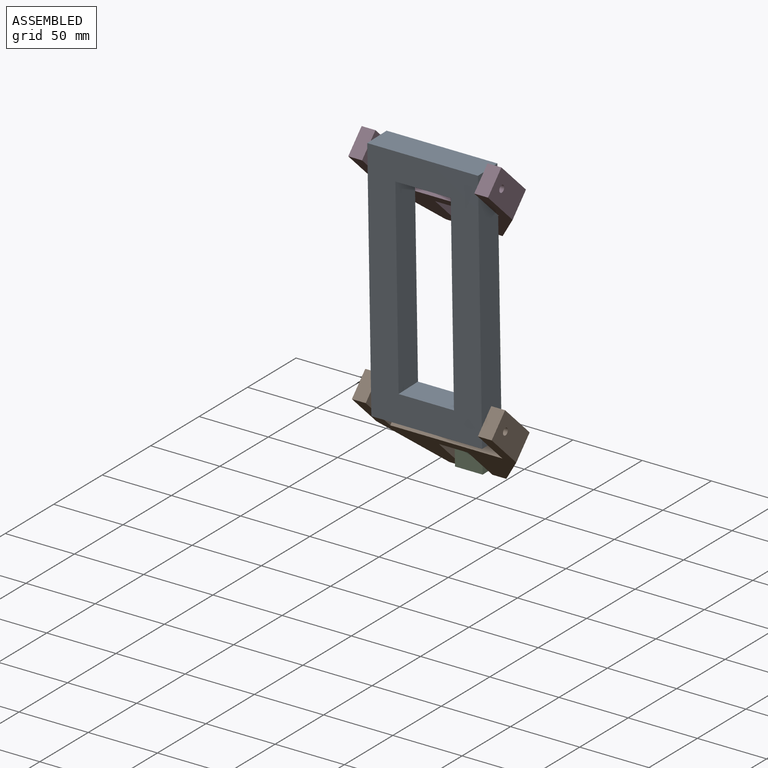
[diagram: assembled view]
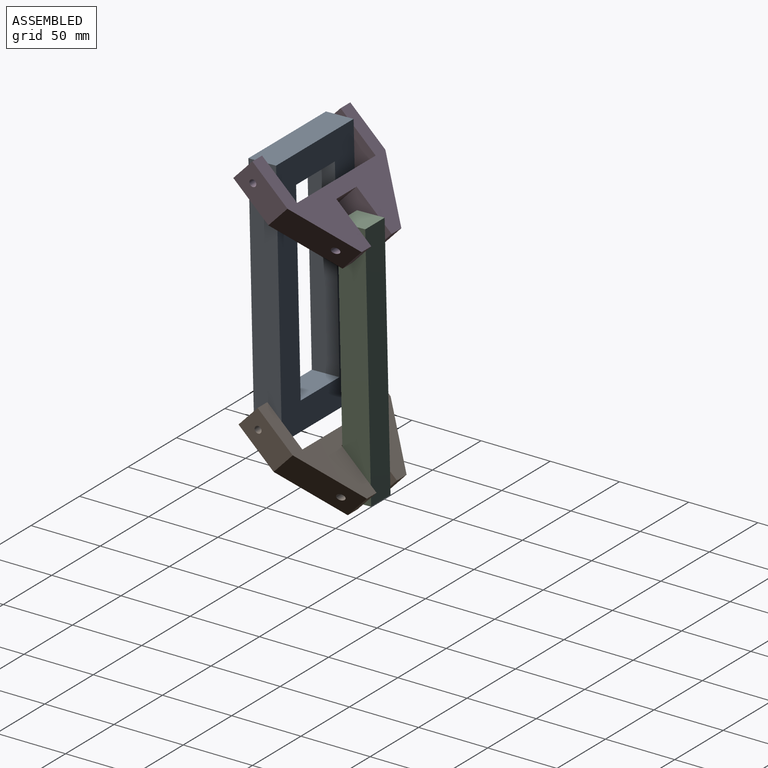
[diagram: assembled view, second angle]
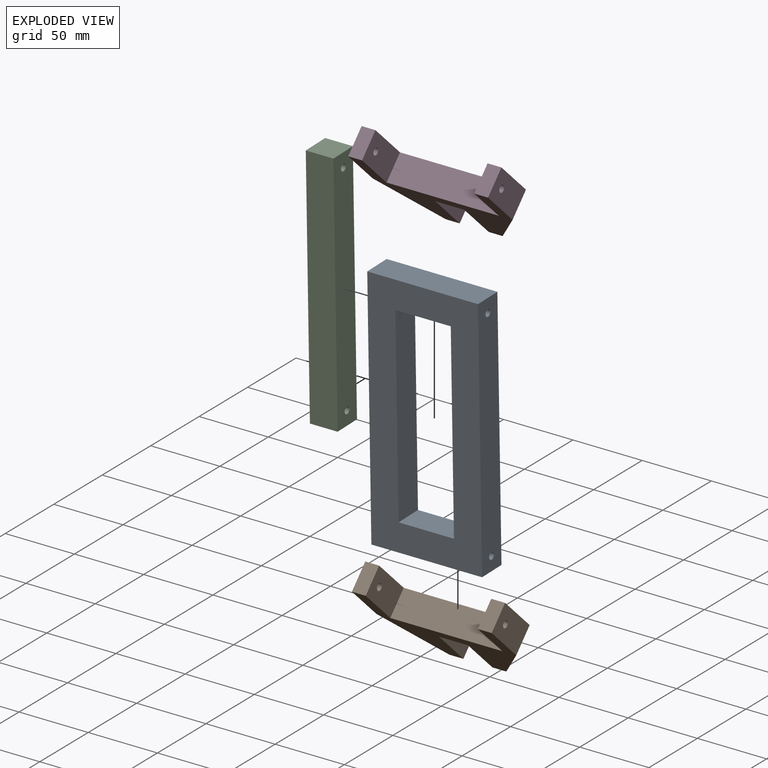
[diagram: exploded view]
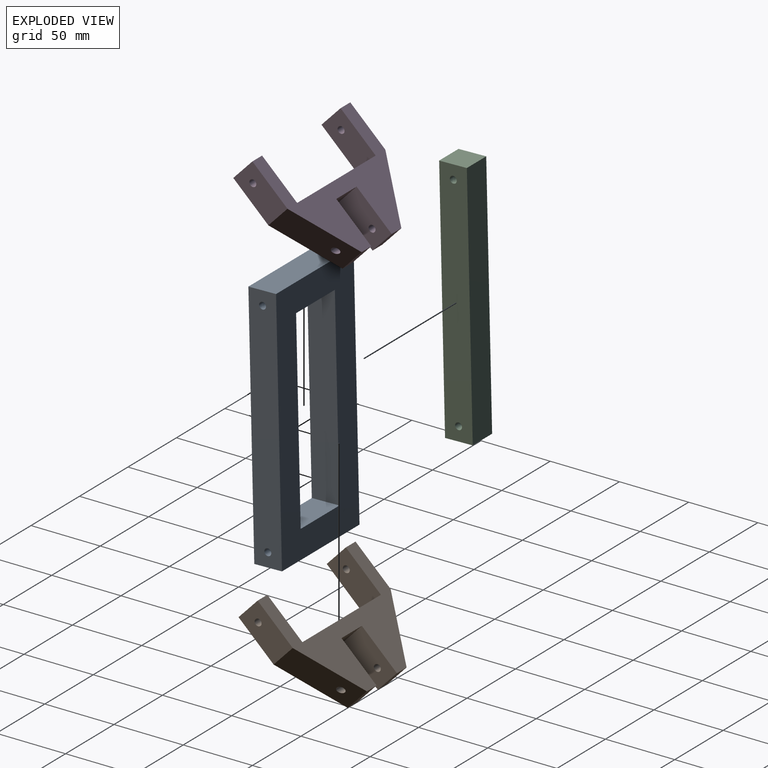
[diagram: exploded view, second angle]
ASSEMBLY  parts=4 mates=4
PART A: 12 faces, bbox 80x20x180 mm
  f0: plane 80x20mm, normal (0,0,1), area 1600mm2, adj f1,f7,f8,f9
  f1: plane 180x20mm, normal (-1,0,0), area 3560.7mm2, adj f0,f2,f8,f9,f10,f11
  f2: plane 80x20mm, normal (0,0,-1), area 1600mm2, adj f1,f7,f8,f9
  f3: plane 140x20mm, normal (1,0,0), area 2800mm2, adj f4,f6,f8,f9
  f4: plane 40x20mm, normal (0,0,-1), area 800mm2, adj f3,f5,f8,f9
  f5: plane 140x20mm, normal (-1,0,0), area 2800mm2, adj f4,f6,f8,f9
  f6: plane 40x20mm, normal (0,0,1), area 800mm2, adj f3,f5,f8,f9
  f7: plane 180x20mm, normal (1,0,0), area 3560.7mm2, adj f0,f2,f8,f9,f10,f11
  f8: plane 180x80mm, normal (0,-1,0), area 8800mm2, adj f0,f1,f2,f3,f4,f5,f6,f7
  f9: plane 180x80mm, normal (0,1,0), area 8800mm2, adj f0,f1,f2,f3,f4,f5,f6,f7
  f10: cylinder r=2.5mm len=80mm, axis (1,0,0), area 1256.6mm2, adj f1,f7
  f11: cylinder r=2.5mm len=80mm, axis (1,0,0), area 1256.6mm2, adj f1,f7
PART B: 20 faces, bbox 101x80x20 mm
  f0: plane 21x20mm, normal (0,1,0), area 420mm2, adj f1,f13,f14,f15
  f1: plane 35x20mm, normal (1,0,0), area 680.4mm2, adj f0,f2,f14,f15,f19
  f2: plane 20x10mm, normal (0,1,0), area 200mm2, adj f1,f3,f14,f15
  f3: plane 45x30mm, normal (-0.83,0.55,0), area 1058.1mm2, adj f2,f4,f14,f15,f19
  f4: plane 35x20mm, normal (-1,0,0), area 680.4mm2, adj f3,f5,f14,f15,f18
  f5: plane 20x10mm, normal (0,-1,0), area 200mm2, adj f4,f6,f14,f15
  f6: plane 35x20mm, normal (1,0,0), area 680.4mm2, adj f5,f7,f14,f15,f18
  f7: plane 81x20mm, normal (0,-1,0), area 1620mm2, adj f6,f8,f14,f15
  f8: plane 35x20mm, normal (-1,0,0), area 680.4mm2, adj f7,f9,f14,f15,f17
  f9: plane 20x10mm, normal (0,-1,0), area 200mm2, adj f8,f10,f14,f15
  f10: plane 35x20mm, normal (1,0,0), area 680.4mm2, adj f9,f11,f14,f15,f17
  f11: plane 45x30mm, normal (0.83,0.55,0), area 1058.1mm2, adj f10,f12,f14,f15,f16
  f12: plane 20x10mm, normal (0,1,0), area 200mm2, adj f11,f13,f14,f15
  f13: plane 35x20mm, normal (-1,0,0), area 680.4mm2, adj f0,f12,f14,f15,f16
  f14: plane 101x80mm, normal (0,0,-1), area 3160mm2, adj f0,f1,f2,f3,f4,f5,f6,f7
  f15: plane 101x80mm, normal (0,0,1), area 3160mm2, adj f0,f1,f2,f3,f4,f5,f6,f7
  f16: cylinder r=2.5mm len=18.33mm, axis (1,0,0), area 261.8mm2, adj f11,f13
  f17: cylinder r=2.5mm len=10mm, axis (1,0,0), area 157.1mm2, adj f8,f10
  f18: cylinder r=2.5mm len=10mm, axis (1,0,0), area 157.1mm2, adj f4,f6
  f19: cylinder r=2.5mm len=18.36mm, axis (1,0,0), area 261.8mm2, adj f1,f3
PART C: 8 faces, bbox 20x20x180 mm
  f0: plane 20x20mm, normal (0,0,1), area 400mm2, adj f1,f3,f4,f5
  f1: plane 180x20mm, normal (0,-1,0), area 3600mm2, adj f0,f2,f4,f5
  f2: plane 20x20mm, normal (0,0,-1), area 400mm2, adj f1,f3,f4,f5
  f3: plane 180x20mm, normal (0,1,0), area 3600mm2, adj f0,f2,f4,f5
  f4: plane 180x20mm, normal (1,0,0), area 3560.7mm2, adj f0,f1,f2,f3,f6,f7
  f5: plane 180x20mm, normal (-1,0,0), area 3560.7mm2, adj f0,f1,f2,f3,f6,f7
  f6: cylinder r=2.5mm len=20mm, axis (1,0,0), area 314.2mm2, adj f4,f5
  f7: cylinder r=2.5mm len=20mm, axis (1,0,0), area 314.2mm2, adj f4,f5
PART D: 20 faces, bbox 101x80x20 mm
  f0: plane 21x20mm, normal (0,1,0), area 420mm2, adj f1,f13,f14,f15
  f1: plane 35x20mm, normal (1,0,0), area 680.4mm2, adj f0,f2,f14,f15,f19
  f2: plane 20x10mm, normal (0,1,0), area 200mm2, adj f1,f3,f14,f15
  f3: plane 45x30mm, normal (-0.83,0.55,0), area 1058.1mm2, adj f2,f4,f14,f15,f19
  f4: plane 35x20mm, normal (-1,0,0), area 680.4mm2, adj f3,f5,f14,f15,f18
  f5: plane 20x10mm, normal (0,-1,0), area 200mm2, adj f4,f6,f14,f15
  f6: plane 35x20mm, normal (1,0,0), area 680.4mm2, adj f5,f7,f14,f15,f18
  f7: plane 81x20mm, normal (0,-1,0), area 1620mm2, adj f6,f8,f14,f15
  f8: plane 35x20mm, normal (-1,0,0), area 680.4mm2, adj f7,f9,f14,f15,f17
  f9: plane 20x10mm, normal (0,-1,0), area 200mm2, adj f8,f10,f14,f15
  f10: plane 35x20mm, normal (1,0,0), area 680.4mm2, adj f9,f11,f14,f15,f17
  f11: plane 45x30mm, normal (0.83,0.55,0), area 1058.1mm2, adj f10,f12,f14,f15,f16
  f12: plane 20x10mm, normal (0,1,0), area 200mm2, adj f11,f13,f14,f15
  f13: plane 35x20mm, normal (-1,0,0), area 680.4mm2, adj f0,f12,f14,f15,f16
  f14: plane 101x80mm, normal (0,0,-1), area 3160mm2, adj f0,f1,f2,f3,f4,f5,f6,f7
  f15: plane 101x80mm, normal (0,0,1), area 3160mm2, adj f0,f1,f2,f3,f4,f5,f6,f7
  f16: cylinder r=2.5mm len=18.33mm, axis (1,0,0), area 261.8mm2, adj f11,f13
  f17: cylinder r=2.5mm len=10mm, axis (1,0,0), area 157.1mm2, adj f8,f10
  f18: cylinder r=2.5mm len=10mm, axis (1,0,0), area 157.1mm2, adj f4,f6
  f19: cylinder r=2.5mm len=18.36mm, axis (1,0,0), area 261.8mm2, adj f1,f3
PLACE A rot(axis=(1,0,0),1.4deg) t=(-1.43,17.08,45.38)mm
PLACE B rot(axis=(-1,0,0),43.6deg) t=(-1.93,135.68,-8.68)mm
PLACE C rot(axis=(1,0,0),1.4deg) t=(-1.43,0.52,2.55)mm
PLACE D rot(axis=(-1,0,0),43.6deg) t=(-1.93,21.46,35.48)mm fixed
MATE revolute B.f17 <-> A.f11  axis (-1,0,0) through (-21.43,11.11,-124.81)mm
MATE revolute D.f17 <-> A.f10  axis (-1,0,0) through (-21.43,7.32,35.15)mm
MATE revolute C.f6 <-> B.f16  axis (1,0,0) through (-51.43,54.53,-166.22)mm
MATE revolute D.f16 <-> C.f7  axis (-1,0,0) through (-51.43,50.74,-6.26)mm
